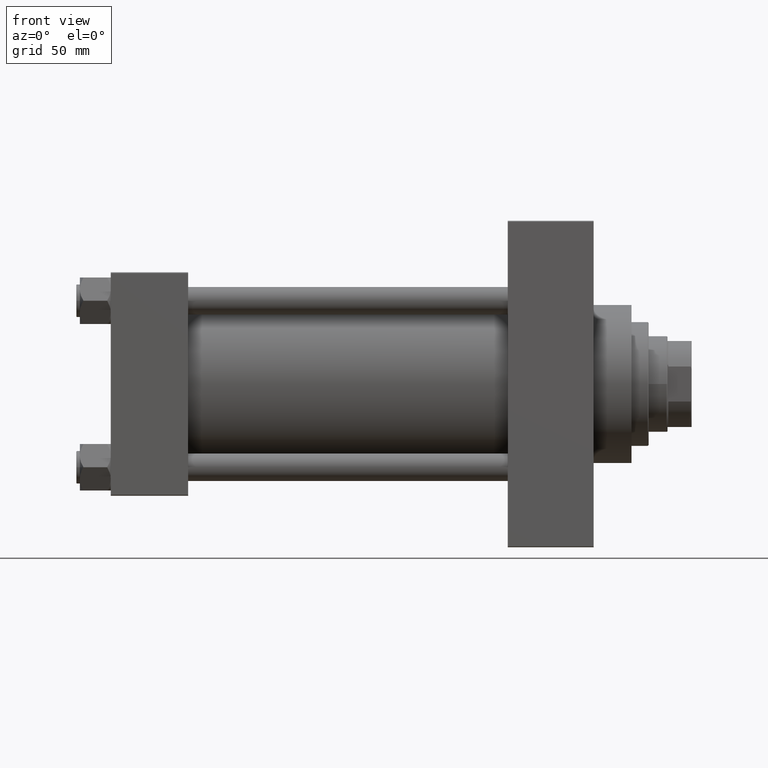
[diagram: clean part render]
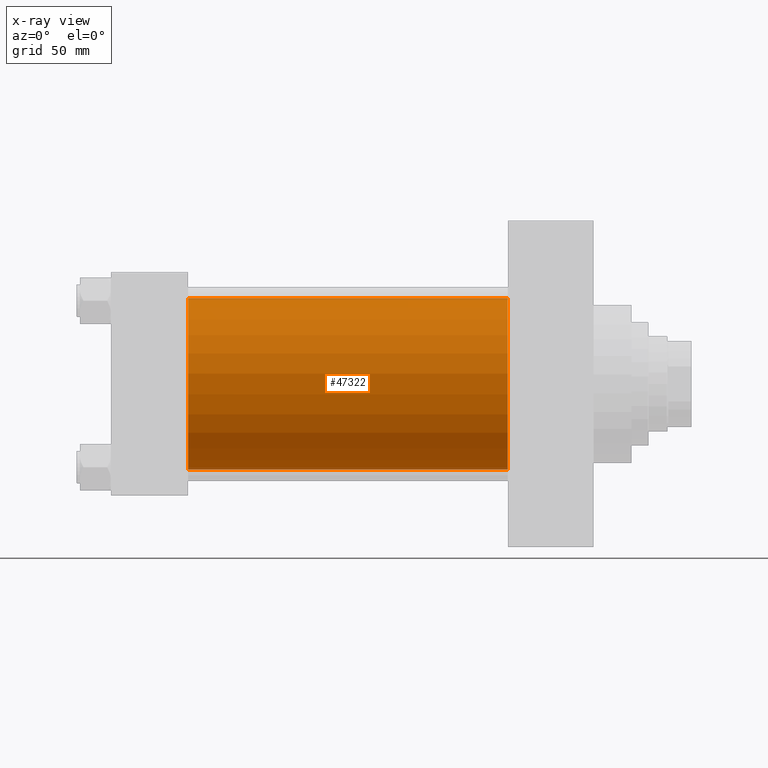
[diagram: x-ray — body ghosted, one internal face saturated and labeled with its STEP entity id]
A machine part, front view, then the same camera in x-ray: the body is ghosted and one INTERNAL B-rep face — a face not visible from any outside direction — is saturated and labeled: STEP entity #47322.
In plain terms, the highlighted cylindrical surface (partial cylindrical patch) has radius 50 mm, axis along (-1, -0, -0).
Its self-contained STEP definition (entity closure, byte-faithful):
#199 = DIRECTION ( 'NONE',  ( 1.000000000000000000, 0.000000000000000000, 0.000000000000000000 ) ) ;
#668 = CARTESIAN_POINT ( 'NONE',  ( 230.9999999999999716, -2.602085213965210642E-15, 0.000000000000000000 ) ) ;
#2206 = LINE ( 'NONE', #4874, #10856 ) ;
#2986 = CARTESIAN_POINT ( 'NONE',  ( 45.00000000000000000, -2.602085213965210642E-15, 0.000000000000000000 ) ) ;
#4874 = CARTESIAN_POINT ( 'NONE',  ( 230.9999999999999716, -2.602085213965210642E-15, 50.00000000000000000 ) ) ;
#6345 = AXIS2_PLACEMENT_3D ( 'NONE', #18090, #43902, #26275 ) ;
#7009 = VERTEX_POINT ( 'NONE', #45769 ) ;
#7935 = FACE_OUTER_BOUND ( 'NONE', #18034, .T. ) ;
#8498 = DIRECTION ( 'NONE',  ( -1.000000000000000000, -0.000000000000000000, -0.000000000000000000 ) ) ;
#10856 = VECTOR ( 'NONE', #8498, 1000.000000000000000 ) ;
#10934 = EDGE_CURVE ( 'NONE', #26544, #7009, #2206, .T. ) ;
#11181 = CARTESIAN_POINT ( 'NONE',  ( 45.00000000000000000, 3.521148781771554260E-15, -50.00000000000000000 ) ) ;
#11982 = DIRECTION ( 'NONE',  ( -1.000000000000000000, -0.000000000000000000, -0.000000000000000000 ) ) ;
#15999 = EDGE_CURVE ( 'NONE', #46531, #38635, #30333, .T. ) ;
#16915 = CARTESIAN_POINT ( 'NONE',  ( 230.9999999999999716, 3.521148781771554260E-15, -50.00000000000000000 ) ) ;
#18034 = EDGE_LOOP ( 'NONE', ( #38525, #42061, #39177, #38996 ) ) ;
#18090 = CARTESIAN_POINT ( 'NONE',  ( 230.9999999999999716, -2.602085213965210642E-15, 0.000000000000000000 ) ) ;
#19085 = DIRECTION ( 'NONE',  ( 0.000000000000000000, 0.000000000000000000, -1.000000000000000000 ) ) ;
#19330 = DIRECTION ( 'NONE',  ( 1.000000000000000000, 0.000000000000000000, 0.000000000000000000 ) ) ;
#22992 = AXIS2_PLACEMENT_3D ( 'NONE', #2986, #19330, #19085 ) ;
#24583 = AXIS2_PLACEMENT_3D ( 'NONE', #668, #199, #29176 ) ;
#26275 = DIRECTION ( 'NONE',  ( 0.000000000000000000, 0.000000000000000000, 1.000000000000000000 ) ) ;
#26544 = VERTEX_POINT ( 'NONE', #43160 ) ;
#29176 = DIRECTION ( 'NONE',  ( 0.000000000000000000, 0.000000000000000000, -1.000000000000000000 ) ) ;
#30333 = LINE ( 'NONE', #45045, #39409 ) ;
#34334 = EDGE_CURVE ( 'NONE', #7009, #38635, #39937, .T. ) ;
#34592 = EDGE_CURVE ( 'NONE', #26544, #46531, #43083, .T. ) ;
#38525 = ORIENTED_EDGE ( 'NONE', *, *, #34592, .T. ) ;
#38635 = VERTEX_POINT ( 'NONE', #11181 ) ;
#38996 = ORIENTED_EDGE ( 'NONE', *, *, #10934, .F. ) ;
#39177 = ORIENTED_EDGE ( 'NONE', *, *, #34334, .F. ) ;
#39409 = VECTOR ( 'NONE', #11982, 1000.000000000000000 ) ;
#39937 = CIRCLE ( 'NONE', #22992, 50.00000000000000000 ) ;
#42061 = ORIENTED_EDGE ( 'NONE', *, *, #15999, .T. ) ;
#43083 = CIRCLE ( 'NONE', #24583, 50.00000000000000000 ) ;
#43160 = CARTESIAN_POINT ( 'NONE',  ( 230.9999999999999716, -2.602085213965210642E-15, 50.00000000000000000 ) ) ;
#43902 = DIRECTION ( 'NONE',  ( -1.000000000000000000, -0.000000000000000000, -0.000000000000000000 ) ) ;
#44617 = CYLINDRICAL_SURFACE ( 'NONE', #6345, 50.00000000000000000 ) ;
#45045 = CARTESIAN_POINT ( 'NONE',  ( 230.9999999999999716, 3.521148781771554260E-15, -50.00000000000000000 ) ) ;
#45769 = CARTESIAN_POINT ( 'NONE',  ( 45.00000000000000000, -2.602085213965210642E-15, 50.00000000000000000 ) ) ;
#46531 = VERTEX_POINT ( 'NONE', #16915 ) ;
#47322 = ADVANCED_FACE ( 'NONE', ( #7935 ), #44617, .F. ) ;